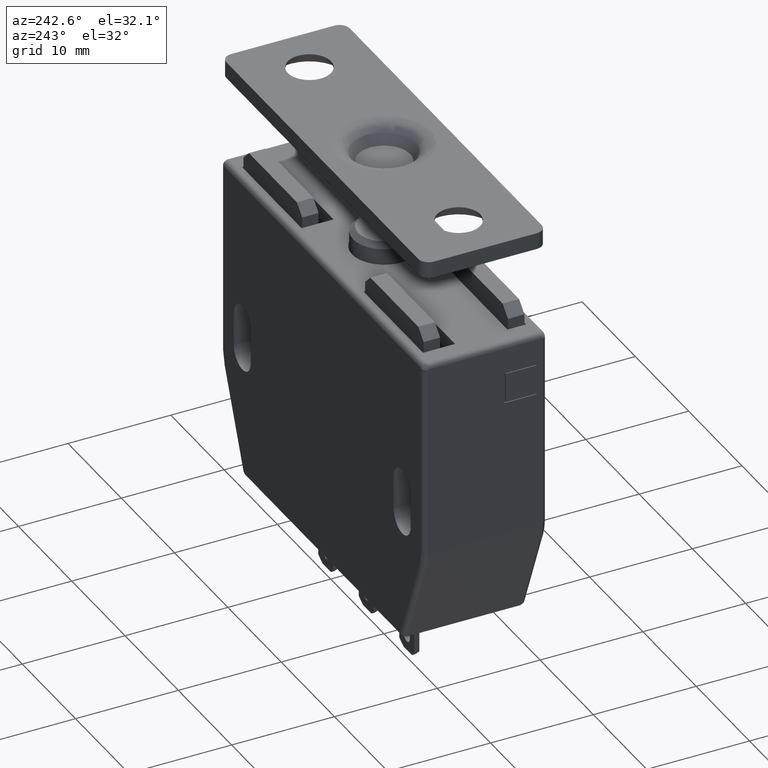
[diagram: clean part render]
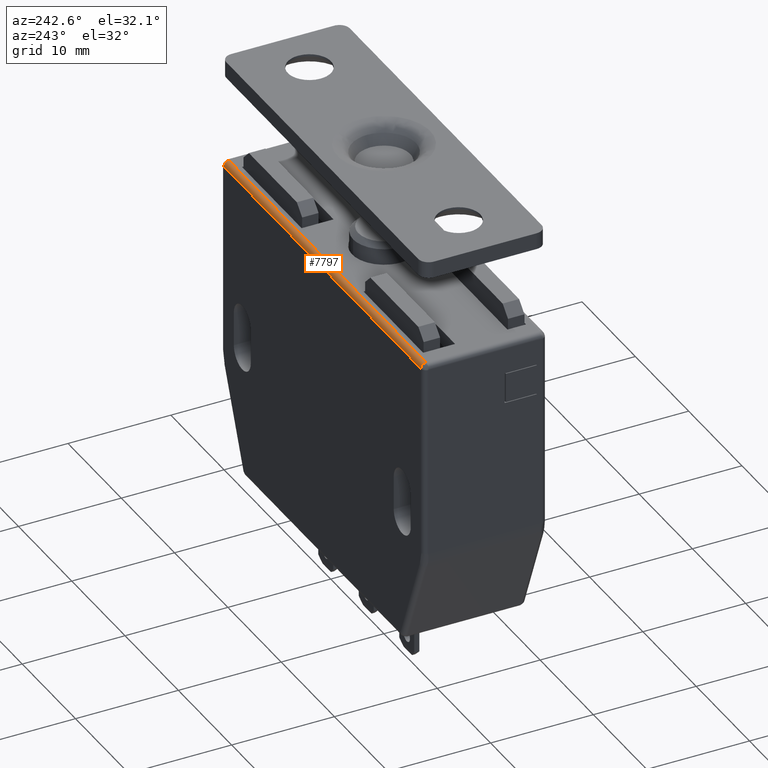
[diagram: same view with one face highlighted and labeled with its STEP entity id]
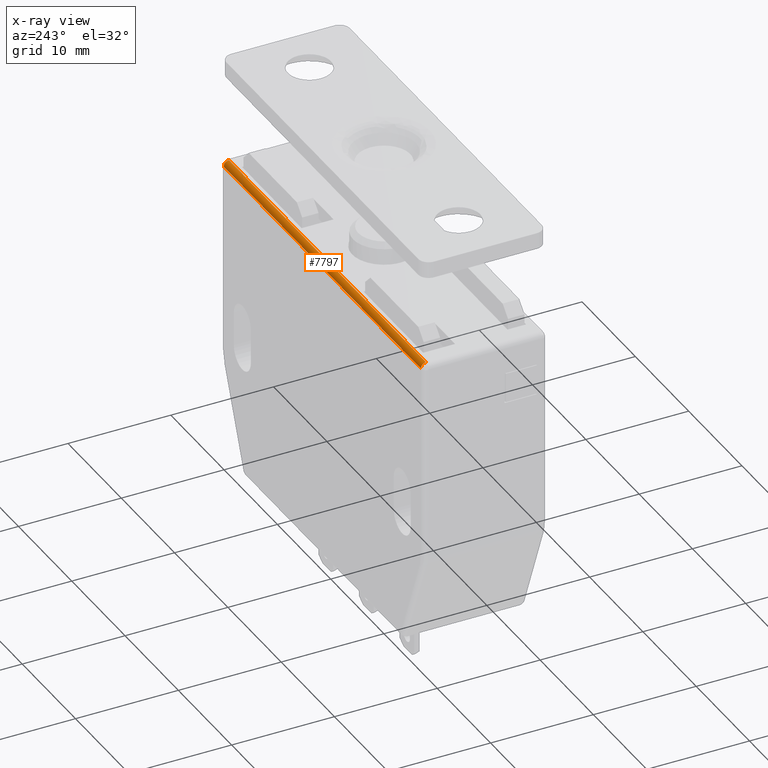
[diagram: x-ray of the same camera — body ghosted, the highlighted face saturated]
A machine part, auxiliary view. The second image highlights one B-rep face of the part: STEP entity #7797.
The next image is the same camera in x-ray: the body ghosted, the highlighted face saturated — about 0% of this face is hidden behind the body in this view.
In plain terms, the highlighted face is a freeform B-spline surface patch.
Its self-contained STEP definition (entity closure, byte-faithful):
#6552=CARTESIAN_POINT('',(18.499999999999648,5.500000000000000,-2.000000000002815));
#6553=VERTEX_POINT('',#6552);
#6559=CARTESIAN_POINT('',(-18.499999999999648,5.500000000000000,-2.000000000002815));
#6560=VERTEX_POINT('',#6559);
#6561=CARTESIAN_POINT('',(18.499999999999648,5.500000000000000,-2.000000000002815));
#6562=CARTESIAN_POINT('',(-18.499999999999648,5.500000000000000,-2.000000000002815));
#6563=QUASI_UNIFORM_CURVE('',1,(#6561,#6562),.UNSPECIFIED.,.F.,.U.);
#6564=EDGE_CURVE('',#6553,#6560,#6563,.T.);
#6743=CARTESIAN_POINT('',(-18.499999999999648,6.0,-2.500000000002815));
#6744=VERTEX_POINT('',#6743);
#6750=CARTESIAN_POINT('',(18.499999999999648,6.0,-2.500000000002815));
#6751=VERTEX_POINT('',#6750);
#6752=CARTESIAN_POINT('',(-18.499999999999648,6.0,-2.500000000002815));
#6753=CARTESIAN_POINT('',(18.499999999999648,6.0,-2.500000000002815));
#6754=QUASI_UNIFORM_CURVE('',1,(#6752,#6753),.UNSPECIFIED.,.F.,.U.);
#6755=EDGE_CURVE('',#6744,#6751,#6754,.T.);
#7697=CARTESIAN_POINT('',(-18.499999999999648,5.500000000000000,-2.000000000002815));
#7698=CARTESIAN_POINT('',(-18.499999999999645,6.0,-2.000000000002816));
#7699=CARTESIAN_POINT('',(-18.499999999999648,6.0,-2.500000000002815));
#7707=(BOUNDED_CURVE()B_SPLINE_CURVE(2,(#7697,#7698,#7699),.UNSPECIFIED.,.F.,.U.)CURVE()GEOMETRIC_REPRESENTATION_ITEM()QUASI_UNIFORM_CURVE()RATIONAL_B_SPLINE_CURVE((1.0,0.707106781186548,1.0))REPRESENTATION_ITEM(''));
#7708=EDGE_CURVE('',#6560,#6744,#7707,.T.);
#7765=CARTESIAN_POINT('',(-19.424999999999638,5.486911525846064,-2.000171337515037));
#7766=CARTESIAN_POINT('',(19.448124999999639,5.486911525846064,-2.000171337515037));
#7767=CARTESIAN_POINT('',(-19.424999999999635,6.037492400277361,-1.985753869919684));
#7768=CARTESIAN_POINT('',(19.448124999999632,6.037492400277361,-1.985753869919684));
#7769=CARTESIAN_POINT('',(-19.424999999999645,5.998762239690406,-2.535160037815806));
#7770=CARTESIAN_POINT('',(19.448124999999642,5.998762239690406,-2.535160037815806));
#7778=(BOUNDED_SURFACE()B_SPLINE_SURFACE(1,2,((#7765,#7767,#7769),(#7766,#7768,#7770)),.UNSPECIFIED.,.F.,.F.,.U.)B_SPLINE_SURFACE_WITH_KNOTS((2,2),(3,3),(0.0,38.873124999999277),(0.0,0.994518632334191),.UNSPECIFIED.)GEOMETRIC_REPRESENTATION_ITEM()RATIONAL_B_SPLINE_SURFACE(((1.0,0.670944223154768,0.996392648609106),(1.0,0.670944223154768,0.996392648609106)))REPRESENTATION_ITEM('')SURFACE());
#7779=CARTESIAN_POINT('',(18.499999999999648,5.500000000000000,-2.000000000002815));
#7780=CARTESIAN_POINT('',(18.499999999999645,6.0,-2.000000000002816));
#7781=CARTESIAN_POINT('',(18.499999999999648,6.0,-2.500000000002815));
#7789=(BOUNDED_CURVE()B_SPLINE_CURVE(2,(#7779,#7780,#7781),.UNSPECIFIED.,.F.,.U.)CURVE()GEOMETRIC_REPRESENTATION_ITEM()QUASI_UNIFORM_CURVE()RATIONAL_B_SPLINE_CURVE((1.0,0.707106781186548,1.0))REPRESENTATION_ITEM(''));
#7790=EDGE_CURVE('',#6553,#6751,#7789,.T.);
#7791=ORIENTED_EDGE('',*,*,#7790,.T.);
#7792=ORIENTED_EDGE('',*,*,#6755,.F.);
#7793=ORIENTED_EDGE('',*,*,#7708,.F.);
#7794=ORIENTED_EDGE('',*,*,#6564,.F.);
#7795=EDGE_LOOP('',(#7791,#7792,#7793,#7794));
#7796=FACE_OUTER_BOUND('',#7795,.T.);
#7797=ADVANCED_FACE('',(#7796),#7778,.T.);